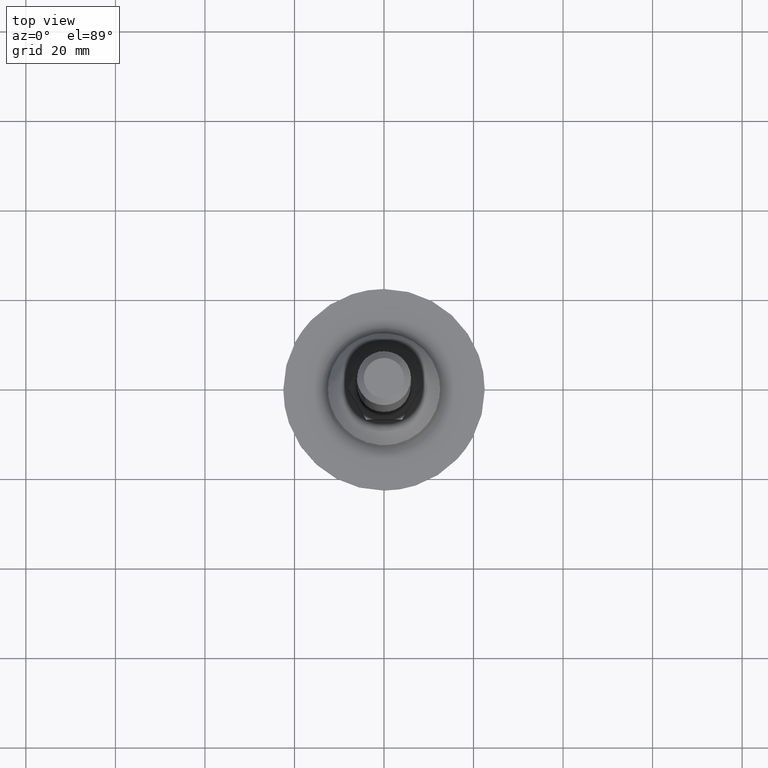
[diagram: clean part render]
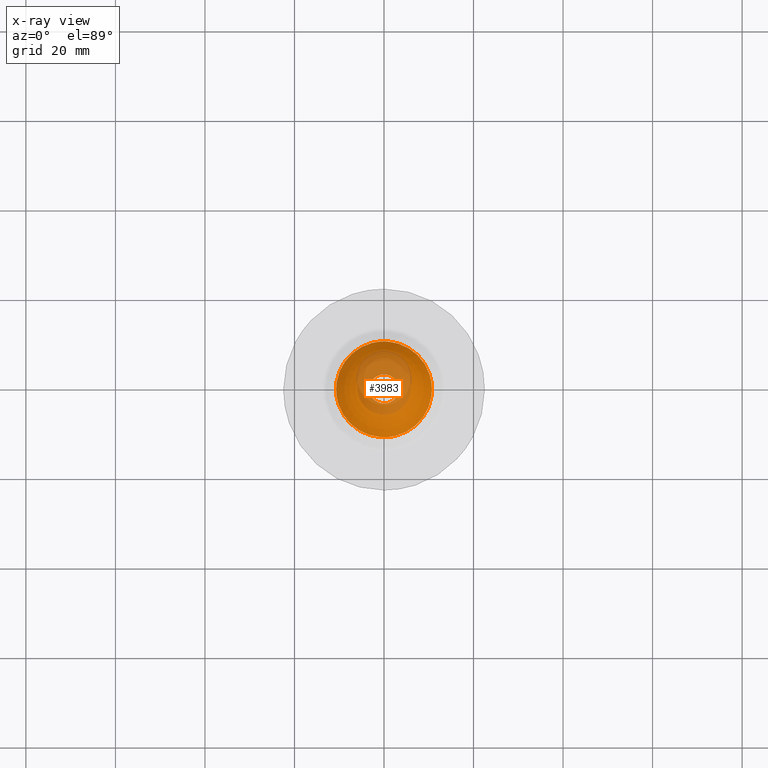
[diagram: x-ray — body ghosted, one internal face saturated and labeled with its STEP entity id]
A machine part, top view, then the same camera in x-ray: the body is ghosted and one INTERNAL B-rep face — a face not visible from any outside direction — is saturated and labeled: STEP entity #3983.
In plain terms, the highlighted face is a freeform B-spline surface patch.
Its self-contained STEP definition (entity closure, byte-faithful):
#3755=CARTESIAN_POINT('',(-0.806897419989760,-10.681709439695920,6.000000000000092));
#3756=VERTEX_POINT('',#3755);
#3757=CARTESIAN_POINT('',(-10.712142642814220,0.0,6.000000000000091));
#3758=VERTEX_POINT('',#3757);
#3759=CARTESIAN_POINT('',(-0.806897419989760,-10.681709439695920,6.000000000000092));
#3760=CARTESIAN_POINT('',(-1.763707571388976,-10.609794592571619,6.000000000000097));
#3761=CARTESIAN_POINT('',(-3.163331743261796,-10.311228091529090,6.000000000000087));
#3762=CARTESIAN_POINT('',(-5.273487004472041,-9.398322219708632,6.000000000000055));
#3763=CARTESIAN_POINT('',(-7.013559076783199,-8.219979610116349,6.000000000000139));
#3764=CARTESIAN_POINT('',(-8.553625995088192,-6.558906912693579,6.000000000000059));
#3765=CARTESIAN_POINT('',(-9.745216317484772,-4.636951434931047,6.000000000000139));
#3766=CARTESIAN_POINT('',(-10.526219176554600,-2.461238308803282,5.999999999999997));
#3767=CARTESIAN_POINT('',(-10.712262052853371,-0.792596774828447,6.000000000000191));
#3768=CARTESIAN_POINT('',(-10.712142642814220,0.0,6.000000000000091));
#3769=B_SPLINE_CURVE_WITH_KNOTS('',3,(#3759,#3760,#3761,#3762,#3763,#3764,#3765,#3766,#3767,#3768),.UNSPECIFIED.,.F.,.U.,(4,1,1,1,1,1,1,4),(0.000000115388097,2.878402356359386,4.255055136752775,6.883180405763332,9.135847228332434,11.013063560417780,13.641221814615511,16.019022988997239),.UNSPECIFIED.);
#3770=EDGE_CURVE('',#3756,#3758,#3769,.T.);
#3772=CARTESIAN_POINT('',(10.590578514279100,-1.609237939378376,6.000000000000092));
#3773=VERTEX_POINT('',#3772);
#3774=CARTESIAN_POINT('',(10.590578514279100,-1.609237939378376,6.000000000000092));
#3775=CARTESIAN_POINT('',(10.502880426874681,-2.186629242057664,6.000000000000099));
#3776=CARTESIAN_POINT('',(10.223065039170280,-3.367741522728700,6.000000000000084));
#3777=CARTESIAN_POINT('',(9.404029291209948,-5.294747728225076,6.000000000000095));
#3778=CARTESIAN_POINT('',(8.027292393695426,-7.255406062322319,6.000000000000097));
#3779=CARTESIAN_POINT('',(6.247066531665831,-8.795162548015949,6.000000000000093));
#3780=CARTESIAN_POINT('',(4.273080243507254,-9.896083229171417,6.000000000000089));
#3781=CARTESIAN_POINT('',(1.999047205585242,-10.639581958505181,6.000000000000103));
#3782=CARTESIAN_POINT('',(0.191439606464046,-10.757496205309851,6.000000000000072));
#3783=CARTESIAN_POINT('',(-0.806897419989760,-10.681709439695920,6.000000000000092));
#3784=B_SPLINE_CURVE_WITH_KNOTS('',3,(#3774,#3775,#3776,#3777,#3778,#3779,#3780,#3781,#3782,#3783),.UNSPECIFIED.,.F.,.U.,(4,1,1,1,1,1,1,4),(0.000000115389913,1.752045109846353,3.629303217929941,6.257432100470300,8.885491548958798,10.637602560801049,13.015448061170741,16.018994777576150),.UNSPECIFIED.);
#3785=EDGE_CURVE('',#3773,#3756,#3784,.T.);
#3801=CARTESIAN_POINT('',(-10.590578514279100,1.609237939378375,6.000000000000091));
#3802=VERTEX_POINT('',#3801);
#3813=CARTESIAN_POINT('',(-10.712142642814220,0.0,6.000000000000091));
#3814=CARTESIAN_POINT('',(-10.712159126694351,0.538451503613772,6.000000000000091));
#3815=CARTESIAN_POINT('',(-10.671489372827370,1.076900045678137,6.000000000000084));
#3816=CARTESIAN_POINT('',(-10.590578514279100,1.609237939378375,6.000000000000091));
#3817=B_SPLINE_CURVE_WITH_KNOTS('',3,(#3813,#3814,#3815,#3816),.UNSPECIFIED.,.F.,.U.,(4,4),(1.230528E-009,1.615359032714076),.UNSPECIFIED.);
#3818=EDGE_CURVE('',#3758,#3802,#3817,.T.);
#3846=CARTESIAN_POINT('',(10.712142642814220,0.0,6.000000000000091));
#3847=VERTEX_POINT('',#3846);
#3848=CARTESIAN_POINT('',(10.712142642814220,0.0,6.000000000000091));
#3849=CARTESIAN_POINT('',(10.712164517229169,-0.538451414910894,6.000000000000084));
#3850=CARTESIAN_POINT('',(10.671483992520560,-1.076899556989877,6.000000000000091));
#3851=CARTESIAN_POINT('',(10.590578514279100,-1.609237939378376,6.000000000000092));
#3852=B_SPLINE_CURVE_WITH_KNOTS('',3,(#3848,#3849,#3850,#3851),.UNSPECIFIED.,.F.,.U.,(4,4),(1.230529E-009,1.615359032714077),.UNSPECIFIED.);
#3853=EDGE_CURVE('',#3847,#3773,#3852,.T.);
#3855=CARTESIAN_POINT('',(0.806897419989775,10.681709439695920,6.000000000000092));
#3856=VERTEX_POINT('',#3855);
#3857=CARTESIAN_POINT('',(0.806897419989775,10.681709439695920,6.000000000000092));
#3858=CARTESIAN_POINT('',(1.389255548746169,10.637754278206479,6.000000000000087));
#3859=CARTESIAN_POINT('',(2.588099795321968,10.447717609958991,6.000000000000106));
#3860=CARTESIAN_POINT('',(4.253953462831061,9.883512788356601,6.000000000000068));
#3861=CARTESIAN_POINT('',(5.914959888113627,8.997249401851830,6.000000000000122));
#3862=CARTESIAN_POINT('',(7.630060752531526,7.651604100384990,6.000000000000061));
#3863=CARTESIAN_POINT('',(9.001203224924332,5.947626485095971,6.000000000000106));
#3864=CARTESIAN_POINT('',(10.030643709373489,3.936545660457801,6.000000000000074));
#3865=CARTESIAN_POINT('',(10.587621204427920,2.044087584592210,6.000000000000163));
#3866=CARTESIAN_POINT('',(10.712172248002110,0.625725884496866,5.999999999999977));
#3867=CARTESIAN_POINT('',(10.712142642814220,0.0,6.000000000000091));
#3868=B_SPLINE_CURVE_WITH_KNOTS('',3,(#3857,#3858,#3859,#3860,#3861,#3862,#3863,#3864,#3865,#3866,#3867),.UNSPECIFIED.,.F.,.U.,(4,1,1,1,1,1,1,1,4),(0.000000115393116,1.752048195310119,3.629309609577781,5.256245284896107,7.383782188769921,10.137026246352770,11.763969742561860,14.141824315727471,16.019022988997179),.UNSPECIFIED.);
#3869=EDGE_CURVE('',#3856,#3847,#3868,.T.);
#3871=CARTESIAN_POINT('',(-10.590578514279100,1.609237939378375,6.000000000000091));
#3872=CARTESIAN_POINT('',(-10.465437825353931,2.434137284773524,6.000000000000108));
#3873=CARTESIAN_POINT('',(-10.143025893762310,3.608687345072982,6.000000000000074));
#3874=CARTESIAN_POINT('',(-9.259106245520060,5.501143930659104,6.000000000000110));
#3875=CARTESIAN_POINT('',(-8.075539500920728,7.186577846422465,6.000000000000079));
#3876=CARTESIAN_POINT('',(-6.441534380050329,8.633600881576671,6.000000000000100));
#3877=CARTESIAN_POINT('',(-4.652183951223642,9.715431928774169,6.000000000000070));
#3878=CARTESIAN_POINT('',(-2.847068948232741,10.400518513591029,6.000000000000162));
#3879=CARTESIAN_POINT('',(-0.905277320559374,10.721928728614481,5.999999999999951));
#3880=CARTESIAN_POINT('',(0.266136052004431,10.722579056988540,6.000000000000233));
#3881=CARTESIAN_POINT('',(0.806897419989775,10.681709439695920,6.000000000000092));
#3882=B_SPLINE_CURVE_WITH_KNOTS('',3,(#3871,#3872,#3873,#3874,#3875,#3876,#3877,#3878,#3879,#3880,#3881),.UNSPECIFIED.,.F.,.U.,(4,1,1,1,1,1,1,1,4),(0.000000115392575,2.502956046945611,3.629303217931074,6.257432100470755,8.635221348540632,10.137008393906960,12.514847192343430,14.392074085397081,16.018994777576161),.UNSPECIFIED.);
#3883=EDGE_CURVE('',#3802,#3856,#3882,.T.);
#3893=CARTESIAN_POINT('',(-8.844068310083099,-8.841469480874832,1.168805202585857));
#3894=CARTESIAN_POINT('',(-5.616208650834548,-11.229116655731387,5.095873141785845));
#3895=CARTESIAN_POINT('',(5.616208818610706,-11.229116655731387,5.095873141650420));
#3896=CARTESIAN_POINT('',(8.844068461850229,-8.841469368646495,1.168805017785732));
#3897=CARTESIAN_POINT('',(-11.230635161801329,-5.613667519259959,5.092942838602057));
#3898=CARTESIAN_POINT('',(-7.692301186799587,-7.690040802651578,11.923147098856060));
#3899=CARTESIAN_POINT('',(7.692301416708764,-7.690040802651578,11.923147098670579));
#3900=CARTESIAN_POINT('',(11.230635316136638,-5.613667428774871,5.092942540681685));
#3901=CARTESIAN_POINT('',(-11.230635161801329,5.613661110119420,5.092942836757832));
#3902=CARTESIAN_POINT('',(-7.692301186799587,7.690032024446548,11.923147096329700));
#3903=CARTESIAN_POINT('',(7.692301416708764,7.690032024446548,11.923147096144220));
#3904=CARTESIAN_POINT('',(11.230635316136638,5.613661019634437,5.092942538837457));
#3905=CARTESIAN_POINT('',(-8.844072602816688,8.841463675622498,1.168812258053542));
#3906=CARTESIAN_POINT('',(-5.616212112987738,11.229110755769016,5.095884523460367));
#3907=CARTESIAN_POINT('',(5.616212280763999,11.229110755769016,5.095884523324941));
#3908=CARTESIAN_POINT('',(8.844072754583833,8.841463563394175,1.168812073253239));
#3916=(BOUNDED_SURFACE()B_SPLINE_SURFACE(2,2,((#3893,#3897,#3901,#3905),(#3894,#3898,#3902,#3906),(#3895,#3899,#3903,#3907),(#3896,#3900,#3904,#3908)),.UNSPECIFIED.,.F.,.F.,.U.)B_SPLINE_SURFACE_WITH_KNOTS((3,1,3),(3,1,3),(0.0,12.984051726107010,25.968103839769380),(0.0,12.980236363319010,25.960457902644890),.UNSPECIFIED.)GEOMETRIC_REPRESENTATION_ITEM()RATIONAL_B_SPLINE_SURFACE(((1.739539071212792,1.369878208325706,1.369878208325706,1.739538226875784),(1.369660862887085,1.0,1.0,1.369660018550078),(1.369660862887085,1.0,1.0,1.369660018550078),(1.739539093293463,1.369878230406378,1.369878230406378,1.739538248956456)))REPRESENTATION_ITEM('')SURFACE());
#3917=ORIENTED_EDGE('',*,*,#3818,.T.);
#3918=ORIENTED_EDGE('',*,*,#3883,.T.);
#3919=ORIENTED_EDGE('',*,*,#3869,.T.);
#3920=ORIENTED_EDGE('',*,*,#3853,.T.);
#3921=ORIENTED_EDGE('',*,*,#3785,.T.);
#3922=ORIENTED_EDGE('',*,*,#3770,.T.);
#3923=EDGE_LOOP('',(#3917,#3918,#3919,#3920,#3921,#3922));
#3924=FACE_OUTER_BOUND('',#3923,.T.);
#3925=CARTESIAN_POINT('',(3.244225639501835,0.0,11.500000000000000));
#3926=VERTEX_POINT('',#3925);
#3927=CARTESIAN_POINT('',(-0.000002510716273,3.244225639500864,11.500000000000000));
#3928=VERTEX_POINT('',#3927);
#3929=CARTESIAN_POINT('',(3.244225639501835,0.0,11.500000000000000));
#3930=CARTESIAN_POINT('',(3.244273629076505,0.238877667435826,11.500000000000011));
#3931=CARTESIAN_POINT('',(3.194128965894445,0.690050238483073,11.499999999999989));
#3932=CARTESIAN_POINT('',(2.935009089865569,1.475228539102380,11.500000000000041));
#3933=CARTESIAN_POINT('',(2.456189655412127,2.191871311692000,11.499999999999901));
#3934=CARTESIAN_POINT('',(1.794466985476168,2.734572512241051,11.500000000000121));
#3935=CARTESIAN_POINT('',(1.008360877018099,3.130385384194516,11.499999999999890));
#3936=CARTESIAN_POINT('',(0.398186084381502,3.244565177976849,11.500000000000011));
#3937=CARTESIAN_POINT('',(-0.000002510716273,3.244225639500864,11.500000000000000));
#3938=B_SPLINE_CURVE_WITH_KNOTS('',3,(#3929,#3930,#3931,#3932,#3933,#3934,#3935,#3936,#3937),.UNSPECIFIED.,.F.,.U.,(4,1,1,1,1,1,4),(0.000000175610109,0.716638772759311,1.353665606298120,2.468468099801449,3.264712190045329,3.901739025317589,5.096147012338507),.UNSPECIFIED.);
#3939=EDGE_CURVE('',#3926,#3928,#3938,.T.);
#3940=ORIENTED_EDGE('',*,*,#3939,.T.);
#3941=CARTESIAN_POINT('',(-3.244225639501835,0.0,11.500000000000000));
#3942=VERTEX_POINT('',#3941);
#3943=CARTESIAN_POINT('',(-0.000002510716273,3.244225639500864,11.500000000000000));
#3944=CARTESIAN_POINT('',(-0.345065345725203,3.244418288107506,11.500000000000000));
#3945=CARTESIAN_POINT('',(-1.008495040011888,3.137343815151036,11.499999999999989));
#3946=CARTESIAN_POINT('',(-1.799386067508540,2.739337233472005,11.500000000000011));
#3947=CARTESIAN_POINT('',(-2.364755572147963,2.251428930451187,11.499999999999989));
#3948=CARTESIAN_POINT('',(-2.791402081574870,1.704805730630138,11.500000000000050));
#3949=CARTESIAN_POINT('',(-3.145907323176286,0.955416866867299,11.499999999999931));
#3950=CARTESIAN_POINT('',(-3.244408586649072,0.345055872539457,11.500000000000041));
#3951=CARTESIAN_POINT('',(-3.244225639501835,0.0,11.500000000000000));
#3952=B_SPLINE_CURVE_WITH_KNOTS('',3,(#3943,#3944,#3945,#3946,#3947,#3948,#3949,#3950,#3951),.UNSPECIFIED.,.F.,.U.,(4,1,1,1,1,1,4),(0.000000179049567,1.035142893505252,1.990703491738055,2.627677630165325,3.264710380885904,4.061001466655180,5.096144182105490),.UNSPECIFIED.);
#3953=EDGE_CURVE('',#3928,#3942,#3952,.T.);
#3954=ORIENTED_EDGE('',*,*,#3953,.T.);
#3955=CARTESIAN_POINT('',(0.000002510716290,-3.244225639500864,11.500000000000000));
#3956=VERTEX_POINT('',#3955);
#3957=CARTESIAN_POINT('',(-3.244225639501835,0.0,11.500000000000000));
#3958=CARTESIAN_POINT('',(-3.244602700340089,-0.398199230606828,11.499999999999989));
#3959=CARTESIAN_POINT('',(-3.140294701264909,-0.955301699869604,11.500000000000030));
#3960=CARTESIAN_POINT('',(-2.810205738764386,-1.652999680478166,11.499999999999980));
#3961=CARTESIAN_POINT('',(-2.441692661718824,-2.176330187600208,11.500000000000011));
#3962=CARTESIAN_POINT('',(-1.807706119196116,-2.751201763835660,11.500000000000000));
#3963=CARTESIAN_POINT('',(-0.955559276321271,-3.154259155515519,11.500000000000000));
#3964=CARTESIAN_POINT('',(-0.291936542545273,-3.244266316751976,11.500000000000050));
#3965=CARTESIAN_POINT('',(0.000002510716290,-3.244225639500864,11.500000000000000));
#3966=B_SPLINE_CURVE_WITH_KNOTS('',3,(#3957,#3958,#3959,#3960,#3961,#3962,#3963,#3964,#3965),.UNSPECIFIED.,.F.,.U.,(4,1,1,1,1,1,4),(0.000000175609232,1.194408163248293,1.672191624921036,2.309236347786667,3.105442594372641,4.220265044149130,5.096147012338528),.UNSPECIFIED.);
#3967=EDGE_CURVE('',#3942,#3956,#3966,.T.);
#3968=ORIENTED_EDGE('',*,*,#3967,.T.);
#3969=CARTESIAN_POINT('',(0.000002510716290,-3.244225639500864,11.500000000000000));
#3970=CARTESIAN_POINT('',(0.451333125775108,-3.244812075919783,11.499999999999970));
#3971=CARTESIAN_POINT('',(1.114375693486082,-3.103509667503235,11.500000000000091));
#3972=CARTESIAN_POINT('',(1.880074274700092,-2.669484444284441,11.499999999999909));
#3973=CARTESIAN_POINT('',(2.445649868148020,-2.181849604922663,11.500000000000080));
#3974=CARTESIAN_POINT('',(2.909096083429986,-1.523759274043546,11.499999999999959));
#3975=CARTESIAN_POINT('',(3.188305120975143,-0.743162614208975,11.500000000000060));
#3976=CARTESIAN_POINT('',(3.244263488255465,-0.238875854084394,11.499999999999970));
#3977=CARTESIAN_POINT('',(3.244225639501835,0.0,11.500000000000000));
#3978=B_SPLINE_CURVE_WITH_KNOTS('',3,(#3969,#3970,#3971,#3972,#3973,#3974,#3975,#3976,#3977),.UNSPECIFIED.,.F.,.U.,(4,1,1,1,1,1,4),(0.000000179049406,1.353664857091599,1.990703491737893,2.627677630165162,3.583214893746472,4.379505983971776,5.096144182105486),.UNSPECIFIED.);
#3979=EDGE_CURVE('',#3956,#3926,#3978,.T.);
#3980=ORIENTED_EDGE('',*,*,#3979,.T.);
#3981=EDGE_LOOP('',(#3940,#3954,#3968,#3980));
#3982=FACE_BOUND('',#3981,.T.);
#3983=ADVANCED_FACE('',(#3924,#3982),#3916,.F.);